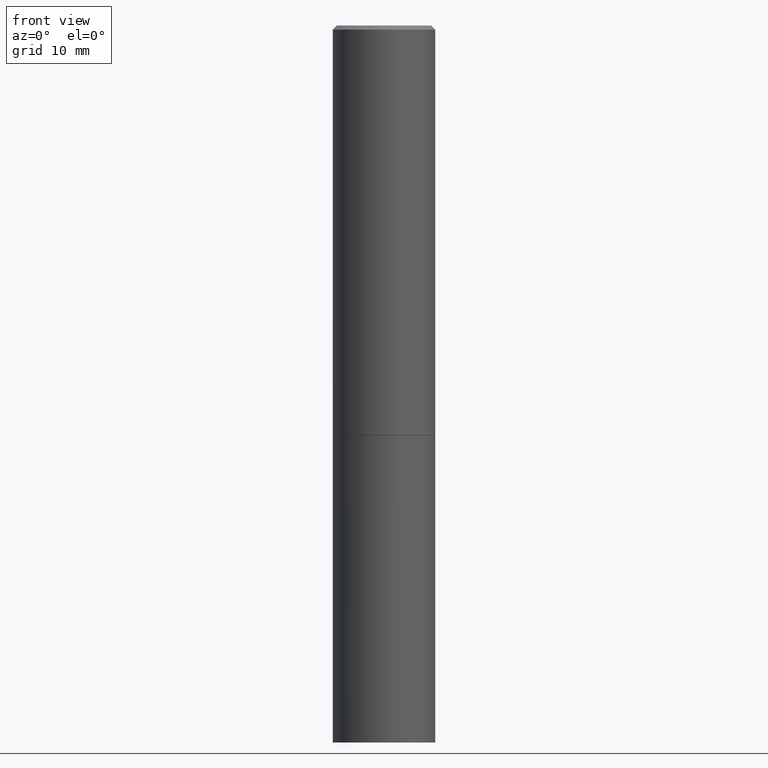
[diagram: clean part render]
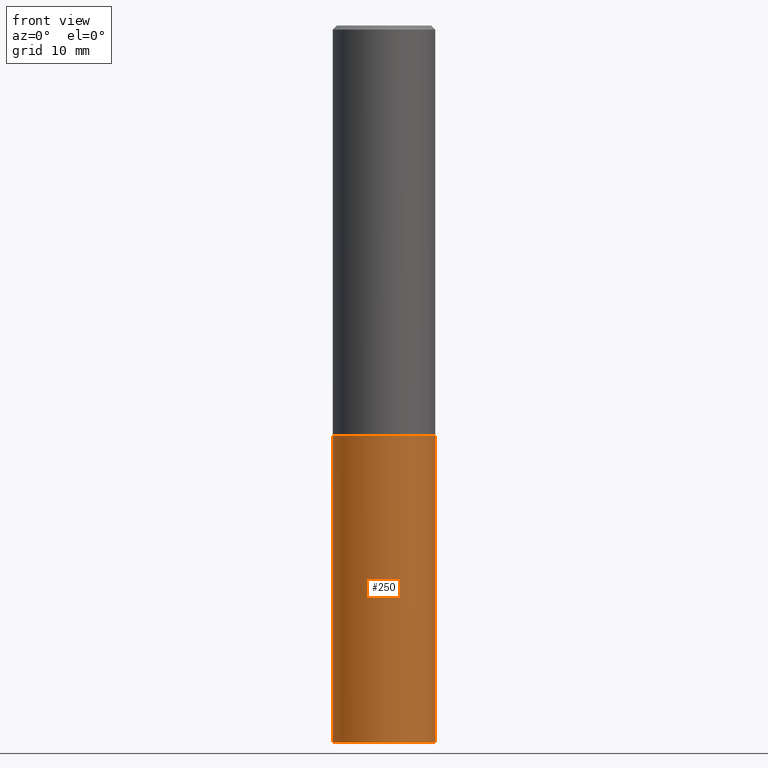
[diagram: same view with one face highlighted and labeled with its STEP entity id]
A machine part, front view. The second image highlights one B-rep face of the part: STEP entity #250.
In plain terms, the highlighted cylindrical surface (partial cylindrical patch) has radius 6.35 mm, axis along (-0, 0, 1).
Its self-contained STEP definition (entity closure, byte-faithful):
#40 = FACE_OUTER_BOUND ( 'NONE', #360, .T. ) ;
#49 = ORIENTED_EDGE ( 'NONE', *, *, #236, .F. ) ;
#59 = DIRECTION ( 'NONE',  ( 1.000000000000000000, -6.982962677686270655E-15, 0.000000000000000000 ) ) ;
#67 = DIRECTION ( 'NONE',  ( 1.000000000000000000, -6.982962677686266711E-15, 0.000000000000000000 ) ) ;
#72 = ORIENTED_EDGE ( 'NONE', *, *, #322, .F. ) ;
#73 = LINE ( 'NONE', #184, #134 ) ;
#86 = VERTEX_POINT ( 'NONE', #346 ) ;
#99 = DIRECTION ( 'NONE',  ( -2.445468806185136597E-29, 3.491481338843145583E-15, 1.000000000000000000 ) ) ;
#106 = AXIS2_PLACEMENT_3D ( 'NONE', #207, #202, #59 ) ;
#116 = EDGE_CURVE ( 'NONE', #327, #215, #169, .T. ) ;
#122 = VECTOR ( 'NONE', #315, 39.37007874015748143 ) ;
#130 = EDGE_CURVE ( 'NONE', #191, #327, #170, .T. ) ;
#134 = VECTOR ( 'NONE', #239, 39.37007874015748143 ) ;
#169 = LINE ( 'NONE', #286, #122 ) ;
#170 = CIRCLE ( 'NONE', #106, 0.2500000000000000000 ) ;
#179 = CARTESIAN_POINT ( 'NONE',  ( 0.2500000000000000000, -1.396592535537257602E-14, -3.500000000000000000 ) ) ;
#184 = CARTESIAN_POINT ( 'NONE',  ( -0.2500000000000000000, 1.776356839400250465E-15, -1.229733772563726445E-29 ) ) ;
#191 = VERTEX_POINT ( 'NONE', #258 ) ;
#202 = DIRECTION ( 'NONE',  ( -2.445468806185136597E-29, 3.491481338843145583E-15, 1.000000000000000000 ) ) ;
#207 = CARTESIAN_POINT ( 'NONE',  ( 8.559140821647976968E-29, -1.222018468595100934E-14, -3.500000000000000000 ) ) ;
#213 = CARTESIAN_POINT ( 'NONE',  ( 0.000000000000000000, 0.000000000000000000, 0.000000000000000000 ) ) ;
#215 = VERTEX_POINT ( 'NONE', #260 ) ;
#235 = CARTESIAN_POINT ( 'NONE',  ( 4.890937612370272633E-29, -6.982962677686290376E-15, -1.999999999999999778 ) ) ;
#236 = EDGE_CURVE ( 'NONE', #86, #215, #301, .T. ) ;
#239 = DIRECTION ( 'NONE',  ( -2.445468806185136877E-29, 3.491481338843145188E-15, 1.000000000000000000 ) ) ;
#250 = ADVANCED_FACE ( 'NONE', ( #40 ), #266, .T. ) ;
#257 = AXIS2_PLACEMENT_3D ( 'NONE', #235, #345, #67 ) ;
#258 = CARTESIAN_POINT ( 'NONE',  ( -0.2500000000000000000, -7.825216842418397817E-15, -3.500000000000000000 ) ) ;
#260 = CARTESIAN_POINT ( 'NONE',  ( 0.2500000000000000000, -8.728703347107857054E-15, -1.999999999999999778 ) ) ;
#266 = CYLINDRICAL_SURFACE ( 'NONE', #323, 0.2500000000000000000 ) ;
#267 = ORIENTED_EDGE ( 'NONE', *, *, #116, .T. ) ;
#286 = CARTESIAN_POINT ( 'NONE',  ( 0.2500000000000000000, -1.745740669421566678E-15, 1.219044193948983948E-29 ) ) ;
#297 = DIRECTION ( 'NONE',  ( 1.000000000000000000, -6.982962677686266711E-15, 4.876176775795935793E-29 ) ) ;
#301 = CIRCLE ( 'NONE', #257, 0.2500000000000000000 ) ;
#315 = DIRECTION ( 'NONE',  ( -2.445468806185136877E-29, 3.491481338843145188E-15, 1.000000000000000000 ) ) ;
#320 = ORIENTED_EDGE ( 'NONE', *, *, #130, .T. ) ;
#322 = EDGE_CURVE ( 'NONE', #191, #86, #73, .T. ) ;
#323 = AXIS2_PLACEMENT_3D ( 'NONE', #213, #99, #297 ) ;
#327 = VERTEX_POINT ( 'NONE', #179 ) ;
#345 = DIRECTION ( 'NONE',  ( -2.445468806185136597E-29, 3.491481338843145583E-15, 1.000000000000000000 ) ) ;
#346 = CARTESIAN_POINT ( 'NONE',  ( -0.2500000000000000000, -7.825216842418397817E-15, -1.999999999999999778 ) ) ;
#360 = EDGE_LOOP ( 'NONE', ( #72, #320, #267, #49 ) ) ;